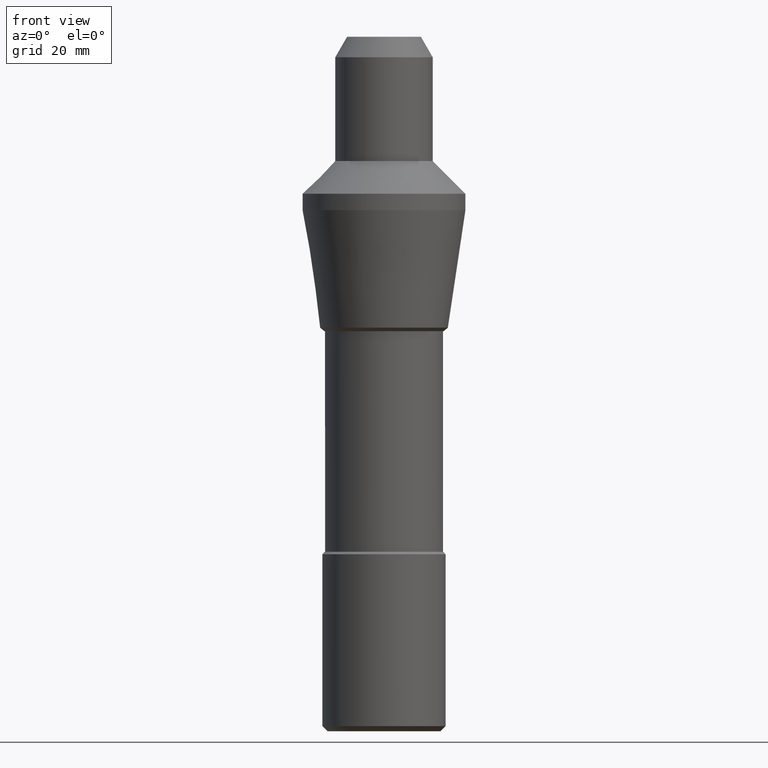
[diagram: clean part render]
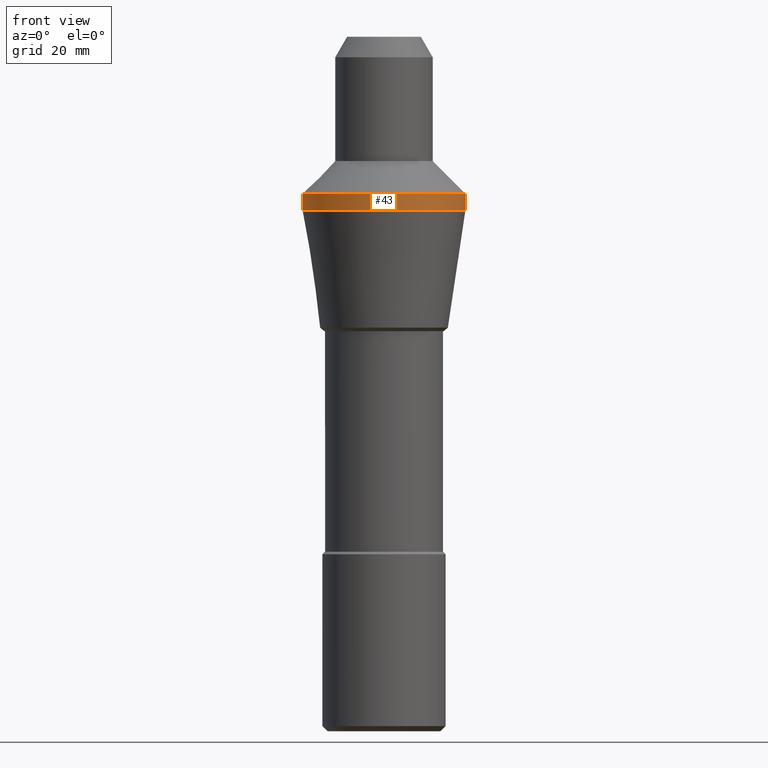
[diagram: same view with one face highlighted and labeled with its STEP entity id]
A machine part, front view. The second image highlights one B-rep face of the part: STEP entity #43.
In plain terms, the highlighted cylindrical surface (bore or boss wall) has radius 15.875 mm, axis along (-0, -0, 1).
Its self-contained STEP definition (entity closure, byte-faithful):
#43 = ADVANCED_FACE ( 'NONE', ( #676, #365 ), #619, .T. ) ;
#54 = AXIS2_PLACEMENT_3D ( 'NONE', #521, #322, #188 ) ;
#81 = EDGE_CURVE ( 'NONE', #763, #763, #196, .T. ) ;
#104 = EDGE_CURVE ( 'NONE', #327, #327, #264, .T. ) ;
#113 = ORIENTED_EDGE ( 'NONE', *, *, #81, .F. ) ;
#134 = DIRECTION ( 'NONE',  ( 1.000000000000000000, 0.0000000000000000000, 0.0000000000000000000 ) ) ;
#188 = DIRECTION ( 'NONE',  ( 1.000000000000000000, 0.0000000000000000000, 0.0000000000000000000 ) ) ;
#196 = CIRCLE ( 'NONE', #54, 15.87499999999994493 ) ;
#264 = CIRCLE ( 'NONE', #485, 15.87499999999994493 ) ;
#276 = EDGE_LOOP ( 'NONE', ( #681 ) ) ;
#322 = DIRECTION ( 'NONE',  ( -0.0000000000000000000, -0.0000000000000000000, 1.000000000000000000 ) ) ;
#327 = VERTEX_POINT ( 'NONE', #647 ) ;
#365 = FACE_OUTER_BOUND ( 'NONE', #276, .T. ) ;
#387 = CARTESIAN_POINT ( 'NONE',  ( 0.0000000000000000000, 0.0000000000000000000, 0.0000000000000000000 ) ) ;
#448 = DIRECTION ( 'NONE',  ( -0.0000000000000000000, -0.0000000000000000000, 1.000000000000000000 ) ) ;
#485 = AXIS2_PLACEMENT_3D ( 'NONE', #387, #448, #645 ) ;
#514 = DIRECTION ( 'NONE',  ( -0.0000000000000000000, -0.0000000000000000000, 1.000000000000000000 ) ) ;
#516 = CARTESIAN_POINT ( 'NONE',  ( 15.87499999999994493, 0.0000000000000000000, 3.200000000000202682 ) ) ;
#521 = CARTESIAN_POINT ( 'NONE',  ( 0.0000000000000000000, 0.0000000000000000000, 3.200000000000202682 ) ) ;
#530 = EDGE_LOOP ( 'NONE', ( #113 ) ) ;
#619 = CYLINDRICAL_SURFACE ( 'NONE', #813, 15.87499999999994493 ) ;
#645 = DIRECTION ( 'NONE',  ( 1.000000000000000000, 0.0000000000000000000, 0.0000000000000000000 ) ) ;
#647 = CARTESIAN_POINT ( 'NONE',  ( 15.87499999999994493, 0.0000000000000000000, 0.0000000000000000000 ) ) ;
#676 = FACE_OUTER_BOUND ( 'NONE', #530, .T. ) ;
#681 = ORIENTED_EDGE ( 'NONE', *, *, #104, .T. ) ;
#763 = VERTEX_POINT ( 'NONE', #516 ) ;
#770 = CARTESIAN_POINT ( 'NONE',  ( 0.0000000000000000000, 0.0000000000000000000, 4.364367297826535541 ) ) ;
#813 = AXIS2_PLACEMENT_3D ( 'NONE', #770, #514, #134 ) ;